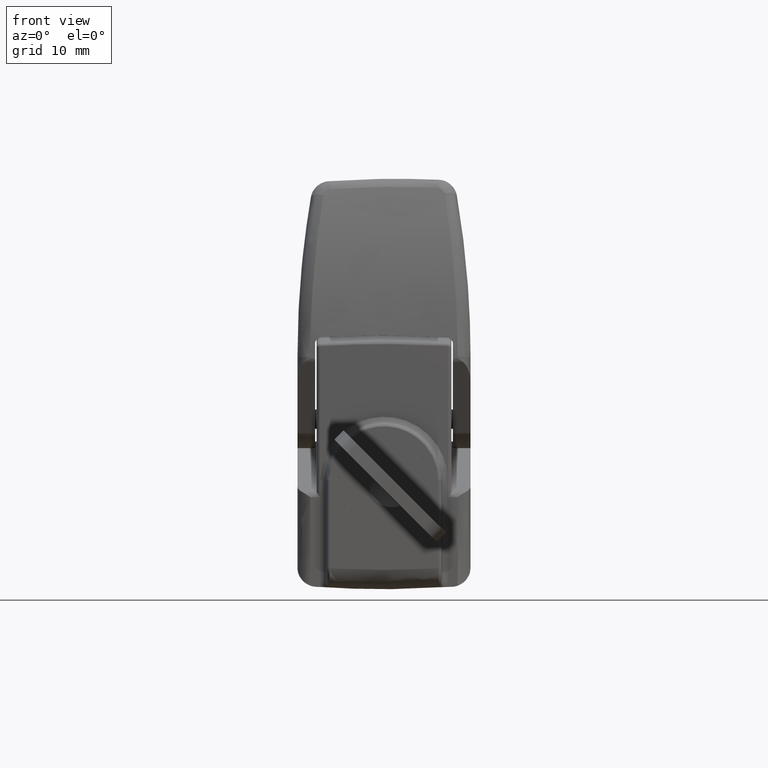
[diagram: clean part render]
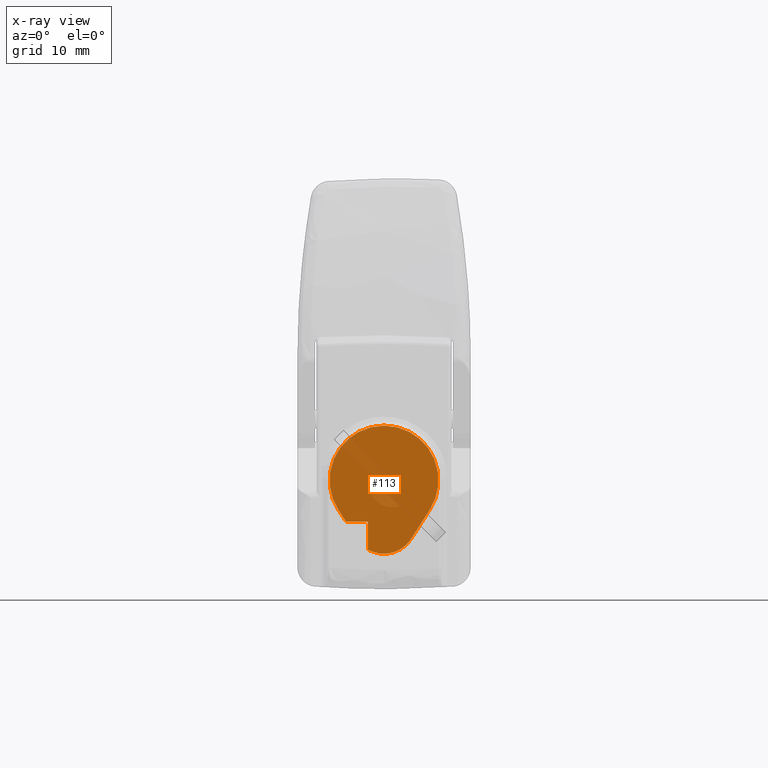
[diagram: x-ray — body ghosted, one internal face saturated and labeled with its STEP entity id]
A machine part, front view, then the same camera in x-ray: the body is ghosted and one INTERNAL B-rep face — a face not visible from any outside direction — is saturated and labeled: STEP entity #113.
In plain terms, the highlighted face is a freeform B-spline surface patch.
Its self-contained STEP definition (entity closure, byte-faithful):
#44=CARTESIAN_POINT('',(-3.700000000000000,-9.349133165347443,1.998999252520175));
#45=CARTESIAN_POINT('',(-3.700000000000000,9.349133320641345,1.998999252520175));
#46=CARTESIAN_POINT('',(-3.700000000000000,-9.349133165347443,-19.998985600440641));
#47=CARTESIAN_POINT('',(-3.700000000000000,9.349133320641345,-19.998985600440641));
#48=B_SPLINE_SURFACE_WITH_KNOTS('',1,1,((#44,#46),(#45,#47)),.UNSPECIFIED.,.F.,.F.,.U.,(2,2),(2,2),(0.0,18.698266485988789),(0.0,21.997984852960819),.UNSPECIFIED.);
#49=CARTESIAN_POINT('',(-3.700000000000000,7.162525751990610,-12.076923076923039));
#50=VERTEX_POINT('',#49);
#51=CARTESIAN_POINT('',(-3.700000000000000,5.933661039639260,-14.0));
#52=VERTEX_POINT('',#51);
#53=CARTESIAN_POINT('',(-3.700000000000000,7.162525751990610,-12.076923076923039));
#54=CARTESIAN_POINT('',(-3.700000000000000,5.933661039639260,-14.0));
#55=QUASI_UNIFORM_CURVE('',1,(#53,#54),.UNSPECIFIED.,.F.,.U.);
#56=EDGE_CURVE('',#50,#52,#55,.T.);
#57=ORIENTED_EDGE('',*,*,#56,.T.);
#58=CARTESIAN_POINT('',(-3.700000000000000,2.500000000000000,-14.0));
#59=VERTEX_POINT('',#58);
#60=CARTESIAN_POINT('',(-3.700000000000000,5.933661039639260,-14.0));
#61=CARTESIAN_POINT('',(-3.700000000000000,2.500000000000000,-14.0));
#62=QUASI_UNIFORM_CURVE('',1,(#60,#61),.UNSPECIFIED.,.F.,.U.);
#63=EDGE_CURVE('',#52,#59,#62,.T.);
#64=ORIENTED_EDGE('',*,*,#63,.T.);
#65=CARTESIAN_POINT('',(-3.700000000000000,2.500000000000000,-18.330127018922202));
#66=VERTEX_POINT('',#65);
#67=CARTESIAN_POINT('',(-3.700000000000000,2.500000000000000,-14.0));
#68=CARTESIAN_POINT('',(-3.700000000000000,2.500000000000000,-18.330127018922202));
#69=QUASI_UNIFORM_CURVE('',1,(#67,#68),.UNSPECIFIED.,.F.,.U.);
#70=EDGE_CURVE('',#59,#66,#69,.T.);
#71=ORIENTED_EDGE('',*,*,#70,.T.);
#72=CARTESIAN_POINT('',(-3.700000000000000,-4.213250442347435,-16.692307692307701));
#73=VERTEX_POINT('',#72);
#74=CARTESIAN_POINT('',(-3.700000000000000,-4.213250442347430,-16.692307692307690));
#75=CARTESIAN_POINT('',(-3.700000000000001,-1.639479869953663,-20.720056836144980));
#76=CARTESIAN_POINT('',(-3.700000000000000,2.499999999999997,-18.330127018922202));
#84=(BOUNDED_CURVE()B_SPLINE_CURVE(2,(#74,#75,#76),.UNSPECIFIED.,.F.,.U.)CURVE()GEOMETRIC_REPRESENTATION_ITEM()QUASI_UNIFORM_CURVE()RATIONAL_B_SPLINE_CURVE((1.0,0.722840344417010,1.0))REPRESENTATION_ITEM(''));
#85=EDGE_CURVE('',#73,#66,#84,.T.);
#86=ORIENTED_EDGE('',*,*,#85,.F.);
#87=CARTESIAN_POINT('',(-3.700000000000000,-7.162525751990610,-12.076923076923039));
#88=VERTEX_POINT('',#87);
#89=CARTESIAN_POINT('',(-3.700000000000000,-4.213250442347435,-16.692307692307701));
#90=CARTESIAN_POINT('',(-3.700000000000000,-7.162525751990610,-12.076923076923039));
#91=QUASI_UNIFORM_CURVE('',1,(#89,#90),.UNSPECIFIED.,.F.,.U.);
#92=EDGE_CURVE('',#73,#88,#91,.T.);
#93=ORIENTED_EDGE('',*,*,#92,.T.);
#94=CARTESIAN_POINT('',(-3.700000000000000,7.162525751990638,-12.076923076923070));
#95=CARTESIAN_POINT('',(-3.700000000000001,11.121543456471645,-5.881370784618575));
#96=CARTESIAN_POINT('',(-3.700000000000000,5.560771728235824,-1.071328458658571));
#97=CARTESIAN_POINT('',(-3.700000000000001,2.602085E-015,3.738713867301434));
#98=CARTESIAN_POINT('',(-3.700000000000000,-5.560771728235821,-1.071328458658569));
#99=CARTESIAN_POINT('',(-3.700000000000001,-11.121543456471642,-5.881370784618571));
#100=CARTESIAN_POINT('',(-3.700000000000000,-7.162525751990641,-12.076923076923070));
#108=(BOUNDED_CURVE()B_SPLINE_CURVE(2,(#94,#95,#96,#97,#98,#99,#100),.UNSPECIFIED.,.F.,.U.)B_SPLINE_CURVE_WITH_KNOTS((3,2,2,3),(0.0,0.333333333333333,0.666666666666667,1.0),.UNSPECIFIED.)CURVE()GEOMETRIC_REPRESENTATION_ITEM()RATIONAL_B_SPLINE_CURVE((1.0,0.756314298981345,1.0,0.756314298981345,1.0,0.756314298981345,1.0))REPRESENTATION_ITEM(''));
#109=EDGE_CURVE('',#50,#88,#108,.T.);
#110=ORIENTED_EDGE('',*,*,#109,.F.);
#111=EDGE_LOOP('',(#57,#64,#71,#86,#93,#110));
#112=FACE_OUTER_BOUND('',#111,.T.);
#113=ADVANCED_FACE('',(#112),#48,.T.);